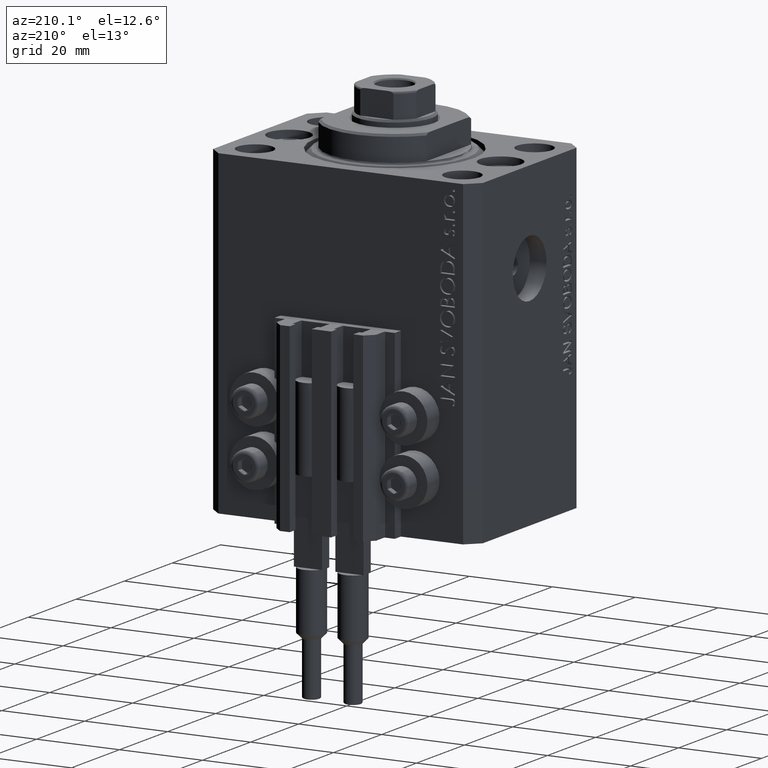
[diagram: clean part render]
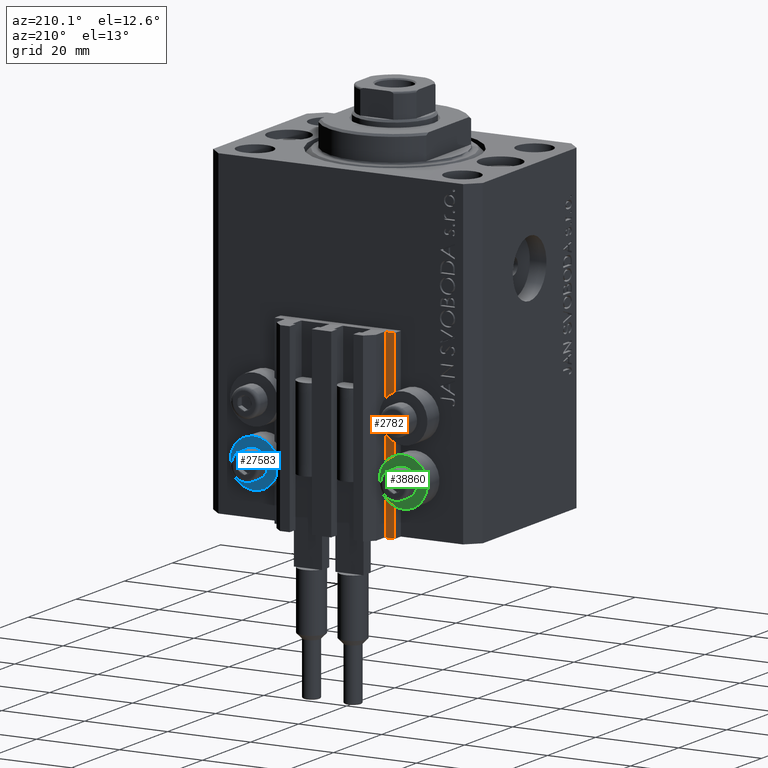
[diagram: same view with three faces highlighted in distinct colors, each labeled with its STEP entity id]
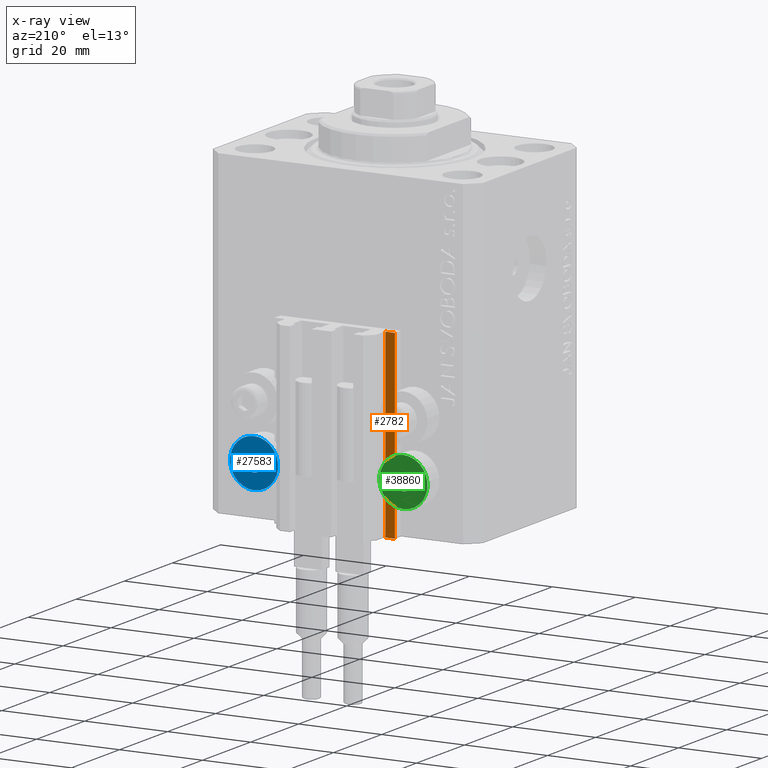
[diagram: x-ray of the same camera — body ghosted, the three highlighted faces saturated]
A machine part, auxiliary view with three faces highlighted in distinct colors.
The next image is the same camera in x-ray (body ghosted, the three faces saturated) — at least one of them is partly hidden behind the body in this view.
Their STEP definitions:

[orange] entity #2782 — the highlighted planar face has unit normal (0, 1, 0).
#952 = ORIENTED_EDGE ( 'NONE', *, *, #48026, .T. ) ;
#1712 = VECTOR ( 'NONE', #35337, 1000.000000000000000 ) ;
#2782 = ADVANCED_FACE ( 'NONE', ( #33234 ), #37107, .T. ) ;
#3804 = CARTESIAN_POINT ( 'NONE',  ( -12.20000000000000107, 24.99999999999948841, -33.00000000000000000 ) ) ;
#4215 = EDGE_CURVE ( 'NONE', #21048, #23335, #16661, .T. ) ;
#4412 = DIRECTION ( 'NONE',  ( -1.000000000000000000, 1.508455196501571429E-15, 0.000000000000000000 ) ) ;
#7724 = DIRECTION ( 'NONE',  ( -1.000000000000000000, 1.508455196501571627E-15, 0.000000000000000000 ) ) ;
#8074 = CARTESIAN_POINT ( 'NONE',  ( -14.50000000000000000, 24.99999999999949196, -33.00000000000000000 ) ) ;
#12654 = DIRECTION ( 'NONE',  ( -1.000000000000000000, 1.508455196501571429E-15, 0.000000000000000000 ) ) ;
#16026 = ORIENTED_EDGE ( 'NONE', *, *, #17613, .F. ) ;
#16661 = LINE ( 'NONE', #20540, #1712 ) ;
#17613 = EDGE_CURVE ( 'NONE', #28930, #39128, #31070, .T. ) ;
#19554 = ORIENTED_EDGE ( 'NONE', *, *, #19725, .F. ) ;
#19715 = LINE ( 'NONE', #22620, #26874 ) ;
#19725 = EDGE_CURVE ( 'NONE', #39128, #23335, #19715, .T. ) ;
#20540 = CARTESIAN_POINT ( 'NONE',  ( -14.50000000000000000, 24.99999999999949196, -77.00000000000000000 ) ) ;
#21048 = VERTEX_POINT ( 'NONE', #29786 ) ;
#22620 = CARTESIAN_POINT ( 'NONE',  ( -12.20000000000000107, 24.99999999999948841, -33.00000000000000000 ) ) ;
#23335 = VERTEX_POINT ( 'NONE', #8074 ) ;
#23346 = LINE ( 'NONE', #34264, #29110 ) ;
#26874 = VECTOR ( 'NONE', #4412, 1000.000000000000000 ) ;
#27449 = DIRECTION ( 'NONE',  ( 0.000000000000000000, 0.000000000000000000, 1.000000000000000000 ) ) ;
#28930 = VERTEX_POINT ( 'NONE', #32285 ) ;
#29110 = VECTOR ( 'NONE', #12654, 1000.000000000000000 ) ;
#29786 = CARTESIAN_POINT ( 'NONE',  ( -14.50000000000000000, 24.99999999999949196, -77.00000000000000000 ) ) ;
#31070 = LINE ( 'NONE', #45413, #32237 ) ;
#32237 = VECTOR ( 'NONE', #27449, 1000.000000000000000 ) ;
#32285 = CARTESIAN_POINT ( 'NONE',  ( -12.20000000000000107, 24.99999999999948841, -77.00000000000000000 ) ) ;
#33001 = CARTESIAN_POINT ( 'NONE',  ( -12.20000000000000107, 24.99999999999948841, -77.00000000000000000 ) ) ;
#33234 = FACE_OUTER_BOUND ( 'NONE', #46593, .T. ) ;
#34264 = CARTESIAN_POINT ( 'NONE',  ( -12.20000000000000107, 24.99999999999948841, -77.00000000000000000 ) ) ;
#35337 = DIRECTION ( 'NONE',  ( 0.000000000000000000, 0.000000000000000000, 1.000000000000000000 ) ) ;
#37023 = ORIENTED_EDGE ( 'NONE', *, *, #4215, .T. ) ;
#37107 = PLANE ( 'NONE',  #38211 ) ;
#38211 = AXIS2_PLACEMENT_3D ( 'NONE', #33001, #47811, #7724 ) ;
#39128 = VERTEX_POINT ( 'NONE', #3804 ) ;
#45413 = CARTESIAN_POINT ( 'NONE',  ( -12.20000000000000107, 24.99999999999948841, -77.00000000000000000 ) ) ;
#46593 = EDGE_LOOP ( 'NONE', ( #19554, #16026, #952, #37023 ) ) ;
#47811 = DIRECTION ( 'NONE',  ( 1.508455196501571627E-15, 1.000000000000000000, -0.000000000000000000 ) ) ;
#48026 = EDGE_CURVE ( 'NONE', #28930, #21048, #23346, .T. ) ;

[blue] entity #27583 — the highlighted planar face has unit normal (0, -1, 0).
#496 = DIRECTION ( 'NONE',  ( 0.000000000000000000, 1.000000000000000000, 0.000000000000000000 ) ) ;
#941 = CARTESIAN_POINT ( 'NONE',  ( 18.00000000000000355, 27.49999999996051514, -64.00000000000000000 ) ) ;
#1377 = VERTEX_POINT ( 'NONE', #7378 ) ;
#1525 = DIRECTION ( 'NONE',  ( 0.000000000000000000, 0.000000000000000000, -1.000000000000000000 ) ) ;
#1928 = PLANE ( 'NONE',  #36291 ) ;
#2252 = DIRECTION ( 'NONE',  ( 0.000000000000000000, 0.000000000000000000, -1.000000000000000000 ) ) ;
#2449 = EDGE_CURVE ( 'NONE', #42317, #11332, #37319, .T. ) ;
#4090 = CIRCLE ( 'NONE', #7977, 2.000000000000001776 ) ;
#4600 = CARTESIAN_POINT ( 'NONE',  ( 12.20000000000000284, 27.49999999996051514, -64.00000000000000000 ) ) ;
#5502 = EDGE_CURVE ( 'NONE', #1377, #12076, #4090, .T. ) ;
#7378 = CARTESIAN_POINT ( 'NONE',  ( 18.00000000000000355, 27.49999999996051514, -62.00000000000000000 ) ) ;
#7977 = AXIS2_PLACEMENT_3D ( 'NONE', #36940, #496, #12157 ) ;
#8243 = DIRECTION ( 'NONE',  ( 0.000000000000000000, 1.000000000000000000, 0.000000000000000000 ) ) ;
#10600 = AXIS2_PLACEMENT_3D ( 'NONE', #34788, #24599, #1525 ) ;
#11332 = VERTEX_POINT ( 'NONE', #19036 ) ;
#12076 = VERTEX_POINT ( 'NONE', #15323 ) ;
#12157 = DIRECTION ( 'NONE',  ( 0.000000000000000000, 0.000000000000000000, -1.000000000000000000 ) ) ;
#12367 = EDGE_LOOP ( 'NONE', ( #25466, #30871 ) ) ;
#12671 = ORIENTED_EDGE ( 'NONE', *, *, #2449, .T. ) ;
#13294 = AXIS2_PLACEMENT_3D ( 'NONE', #35507, #20952, #2252 ) ;
#13511 = AXIS2_PLACEMENT_3D ( 'NONE', #941, #8243, #41242 ) ;
#15292 = EDGE_CURVE ( 'NONE', #12076, #1377, #33821, .T. ) ;
#15323 = CARTESIAN_POINT ( 'NONE',  ( 18.00000000000000355, 27.49999999996051514, -66.00000000000000000 ) ) ;
#15769 = DIRECTION ( 'NONE',  ( 0.000000000000000000, -1.000000000000000000, 0.000000000000000000 ) ) ;
#19036 = CARTESIAN_POINT ( 'NONE',  ( 18.00000000000000355, 27.49999999996051514, -58.20000000000000284 ) ) ;
#19667 = FACE_OUTER_BOUND ( 'NONE', #25305, .T. ) ;
#19908 = FACE_BOUND ( 'NONE', #12367, .T. ) ;
#20952 = DIRECTION ( 'NONE',  ( 0.000000000000000000, 1.000000000000000000, 0.000000000000000000 ) ) ;
#24599 = DIRECTION ( 'NONE',  ( 0.000000000000000000, 1.000000000000000000, 0.000000000000000000 ) ) ;
#25305 = EDGE_LOOP ( 'NONE', ( #12671, #28985 ) ) ;
#25466 = ORIENTED_EDGE ( 'NONE', *, *, #5502, .F. ) ;
#27583 = ADVANCED_FACE ( 'NONE', ( #19908, #19667 ), #1928, .F. ) ;
#28985 = ORIENTED_EDGE ( 'NONE', *, *, #45999, .T. ) ;
#30871 = ORIENTED_EDGE ( 'NONE', *, *, #15292, .F. ) ;
#33821 = CIRCLE ( 'NONE', #10600, 2.000000000000001776 ) ;
#34436 = CIRCLE ( 'NONE', #13511, 5.799999999999999822 ) ;
#34788 = CARTESIAN_POINT ( 'NONE',  ( 18.00000000000000355, 27.49999999996051514, -64.00000000000000000 ) ) ;
#35507 = CARTESIAN_POINT ( 'NONE',  ( 18.00000000000000355, 27.49999999996051514, -64.00000000000000000 ) ) ;
#36291 = AXIS2_PLACEMENT_3D ( 'NONE', #4600, #15769, #45860 ) ;
#36940 = CARTESIAN_POINT ( 'NONE',  ( 18.00000000000000355, 27.49999999996051514, -64.00000000000000000 ) ) ;
#37319 = CIRCLE ( 'NONE', #13294, 5.799999999999999822 ) ;
#37521 = CARTESIAN_POINT ( 'NONE',  ( 18.00000000000000355, 27.49999999996051514, -69.79999999999999716 ) ) ;
#41242 = DIRECTION ( 'NONE',  ( 0.000000000000000000, 0.000000000000000000, -1.000000000000000000 ) ) ;
#42317 = VERTEX_POINT ( 'NONE', #37521 ) ;
#45860 = DIRECTION ( 'NONE',  ( -0.000000000000000000, 0.000000000000000000, 1.000000000000000000 ) ) ;
#45999 = EDGE_CURVE ( 'NONE', #11332, #42317, #34436, .T. ) ;

[green] entity #38860 — the highlighted planar face has unit normal (0, -1, 0).
#1907 = FACE_OUTER_BOUND ( 'NONE', #32668, .T. ) ;
#2149 = CARTESIAN_POINT ( 'NONE',  ( -18.00000000000000355, 27.49999999996051514, -64.00000000000000000 ) ) ;
#2937 = EDGE_CURVE ( 'NONE', #30463, #34594, #10958, .T. ) ;
#3275 = CARTESIAN_POINT ( 'NONE',  ( -18.00000000000000355, 27.49999999996051514, -64.00000000000000000 ) ) ;
#5544 = PLANE ( 'NONE',  #21835 ) ;
#6919 = DIRECTION ( 'NONE',  ( -0.000000000000000000, -1.000000000000000000, -0.000000000000000000 ) ) ;
#8958 = DIRECTION ( 'NONE',  ( 0.000000000000000000, -1.000000000000000000, 0.000000000000000000 ) ) ;
#9424 = CARTESIAN_POINT ( 'NONE',  ( -18.00000000000000355, 27.49999999996051514, -64.00000000000000000 ) ) ;
#9672 = FACE_BOUND ( 'NONE', #41144, .T. ) ;
#9843 = CARTESIAN_POINT ( 'NONE',  ( -18.00000000000000355, 27.49999999996051514, -64.00000000000000000 ) ) ;
#10958 = CIRCLE ( 'NONE', #38095, 5.799999999999999822 ) ;
#12583 = DIRECTION ( 'NONE',  ( 0.000000000000000000, 0.000000000000000000, -1.000000000000000000 ) ) ;
#13633 = AXIS2_PLACEMENT_3D ( 'NONE', #9843, #35336, #16898 ) ;
#16727 = DIRECTION ( 'NONE',  ( 0.000000000000000000, 0.000000000000000000, 1.000000000000000000 ) ) ;
#16898 = DIRECTION ( 'NONE',  ( 0.000000000000000000, 0.000000000000000000, -1.000000000000000000 ) ) ;
#17352 = EDGE_CURVE ( 'NONE', #41032, #28030, #26041, .T. ) ;
#18073 = CIRCLE ( 'NONE', #45173, 2.000000000000001776 ) ;
#21080 = DIRECTION ( 'NONE',  ( -0.000000000000000000, -1.000000000000000000, -0.000000000000000000 ) ) ;
#21835 = AXIS2_PLACEMENT_3D ( 'NONE', #42445, #8958, #16727 ) ;
#22183 = ORIENTED_EDGE ( 'NONE', *, *, #2937, .F. ) ;
#24532 = CARTESIAN_POINT ( 'NONE',  ( -18.00000000000000355, 27.49999999996051514, -62.00000000000000000 ) ) ;
#24893 = AXIS2_PLACEMENT_3D ( 'NONE', #2149, #45601, #12583 ) ;
#25127 = ORIENTED_EDGE ( 'NONE', *, *, #43262, .T. ) ;
#26041 = CIRCLE ( 'NONE', #13633, 2.000000000000001776 ) ;
#28030 = VERTEX_POINT ( 'NONE', #24532 ) ;
#30463 = VERTEX_POINT ( 'NONE', #45787 ) ;
#31263 = DIRECTION ( 'NONE',  ( 0.000000000000000000, 0.000000000000000000, -1.000000000000000000 ) ) ;
#32668 = EDGE_LOOP ( 'NONE', ( #47144, #22183 ) ) ;
#33576 = ORIENTED_EDGE ( 'NONE', *, *, #17352, .T. ) ;
#33658 = EDGE_CURVE ( 'NONE', #34594, #30463, #35726, .T. ) ;
#33827 = CARTESIAN_POINT ( 'NONE',  ( -18.00000000000000355, 27.49999999996051514, -66.00000000000000000 ) ) ;
#34594 = VERTEX_POINT ( 'NONE', #39582 ) ;
#35336 = DIRECTION ( 'NONE',  ( -0.000000000000000000, -1.000000000000000000, -0.000000000000000000 ) ) ;
#35583 = DIRECTION ( 'NONE',  ( 0.000000000000000000, 0.000000000000000000, -1.000000000000000000 ) ) ;
#35726 = CIRCLE ( 'NONE', #24893, 5.799999999999999822 ) ;
#38095 = AXIS2_PLACEMENT_3D ( 'NONE', #9424, #21080, #31263 ) ;
#38860 = ADVANCED_FACE ( 'NONE', ( #9672, #1907 ), #5544, .F. ) ;
#39582 = CARTESIAN_POINT ( 'NONE',  ( -18.00000000000000355, 27.49999999996051514, -69.79999999999999716 ) ) ;
#41032 = VERTEX_POINT ( 'NONE', #33827 ) ;
#41144 = EDGE_LOOP ( 'NONE', ( #25127, #33576 ) ) ;
#42445 = CARTESIAN_POINT ( 'NONE',  ( -12.20000000000000284, 27.49999999996051514, -64.00000000000000000 ) ) ;
#43262 = EDGE_CURVE ( 'NONE', #28030, #41032, #18073, .T. ) ;
#45173 = AXIS2_PLACEMENT_3D ( 'NONE', #3275, #6919, #35583 ) ;
#45601 = DIRECTION ( 'NONE',  ( -0.000000000000000000, -1.000000000000000000, -0.000000000000000000 ) ) ;
#45787 = CARTESIAN_POINT ( 'NONE',  ( -18.00000000000000355, 27.49999999996051514, -58.20000000000000284 ) ) ;
#47144 = ORIENTED_EDGE ( 'NONE', *, *, #33658, .F. ) ;